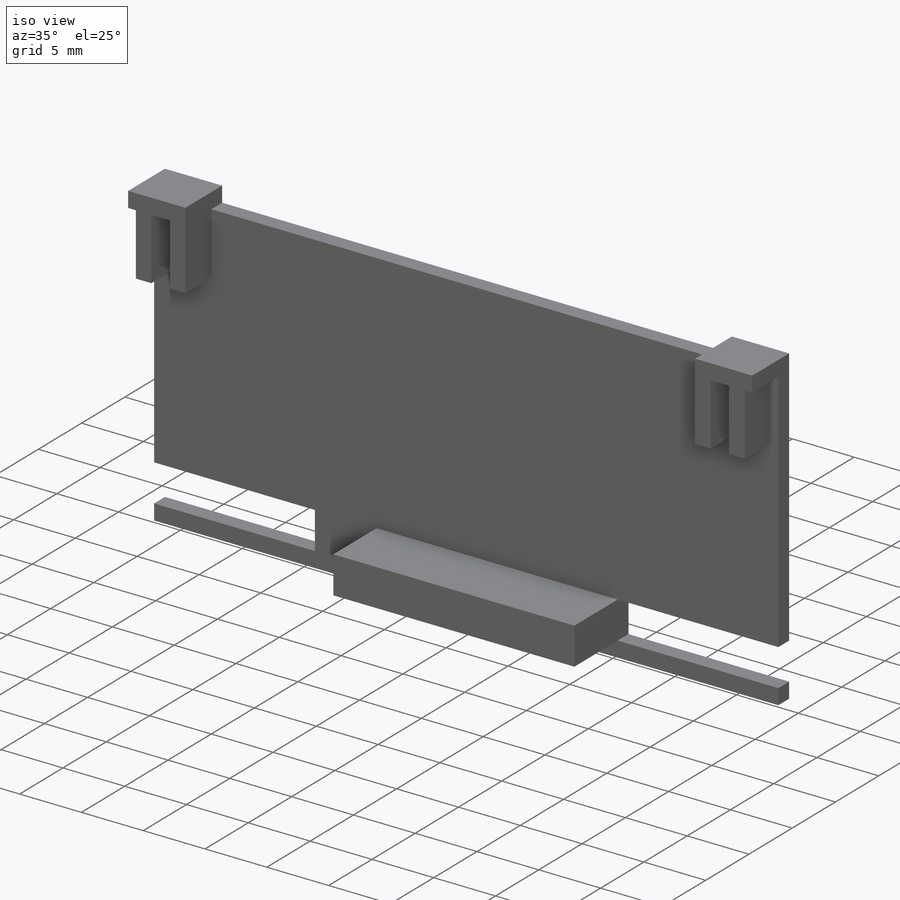
[diagram: iso view]
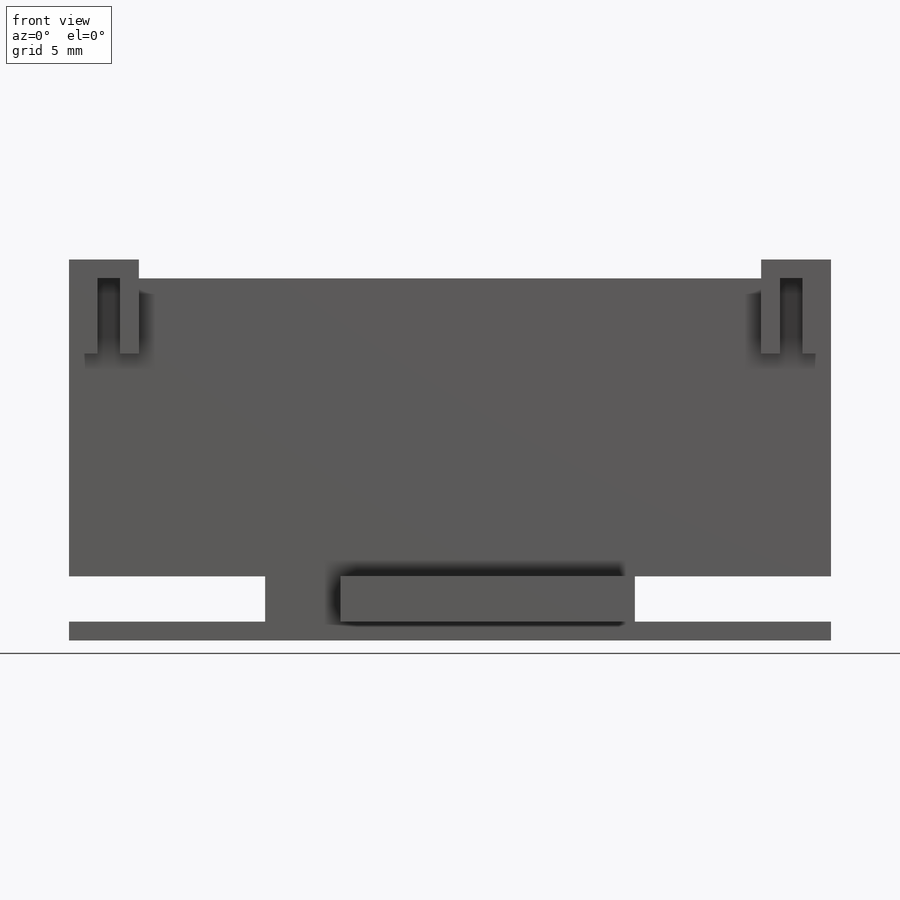
[diagram: front view]
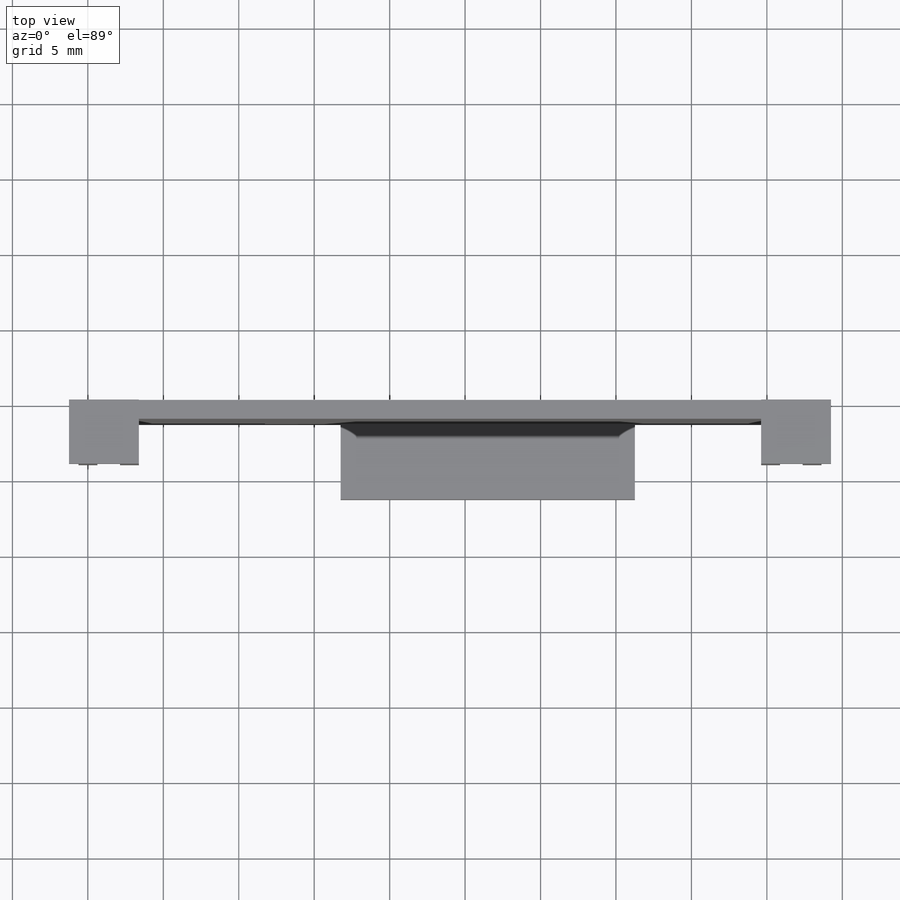
[diagram: top view]
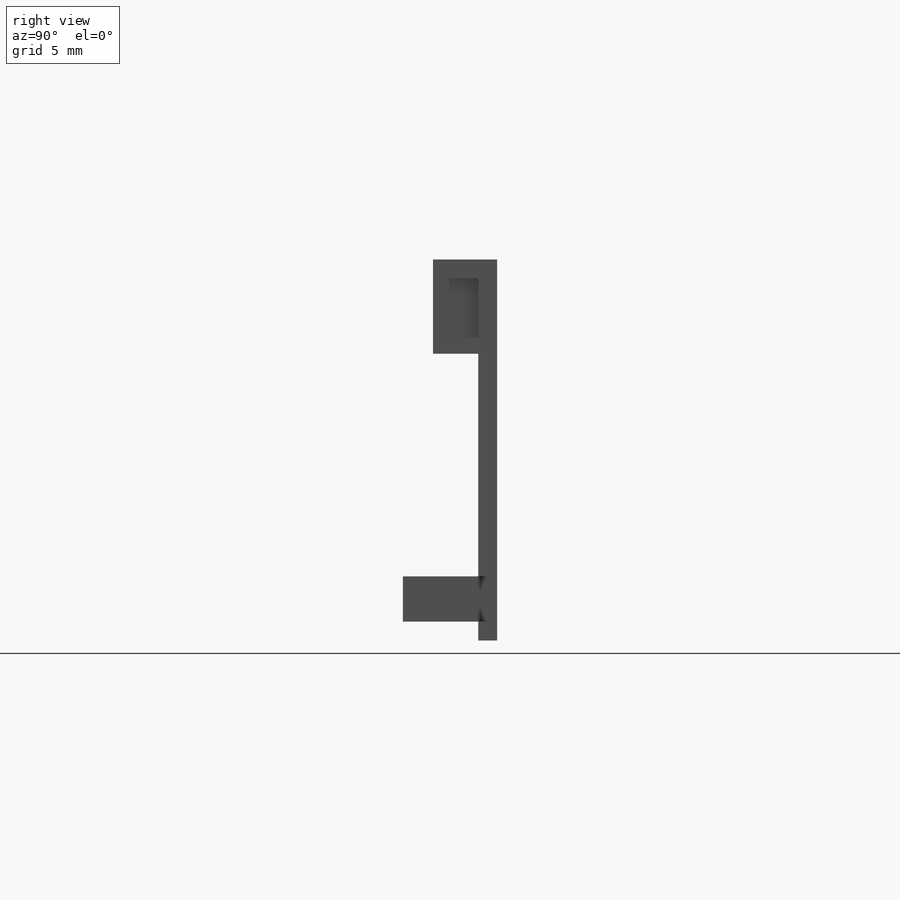
[diagram: right view]
SOLIDWORKS PART (.sldprt)
format: sldprt  version: not decoded by parser v0  size: 283,648 bytes
history: native  units: mm
features: sketch x5, extrude x4, material x1, cut_extrude x1 (+13 scaffold rows collapsed)
feature tree (24):
  scaffold x13  (default folders/planes/origin — collapsed)
  material  "Material <not specified>"
  sketch  "Sketch1"  dims[c1.D1=22.75mm c1.D2=48.0mm c1.D3=1.25mm c1.D4=1.25mm c1.D5=1.25mm c2.D4=1.25mm]
  extrude  "Boss-Extrude1"  Depth=1.25mm
  sketch  "Sketch2"  dims[D1=1.5mm D2=3.0mm D3=1.25mm D4=2.0mm]
  extrude  "Boss-Extrude2"  Depth=5mm
  sketch  "Sketch3"  dims[D1=3.0mm D2=1.25mm D3=13.0mm]
  cut_extrude  "Cut-Extrude1"  [1 undecoded]
  sketch  "Sketch5"
  extrude  "Boss-Extrude3"  Depth=1.25mm
  sketch  "Sketch9"  dims[D1=19.5mm]
  extrude  "Boss-Extrude5"  Depth=5mm
decode coverage: 8 of 10 modeling features carry decoded parameters
note: 1 parameter value undecoded
note: suppression state not decoded; provenance and decode notes live in map.json
